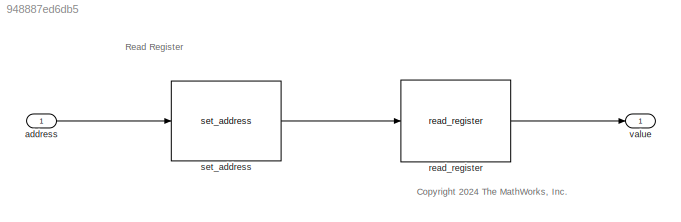
MODEL slx_948887ed6db5
KIND model
CONFIG AbsTol = auto
CONFIG EnableMultiTasking = off
CONFIG FixedStep = SAMPLING_TIME
CONFIG MaxStep = auto
CONFIG MinStep = auto
CONFIG RelTol = 1e-3
CONFIG SampleTimeConstraint = Unconstrained
CONFIG SolverName = FixedStepAuto
CONFIG StartTime = 0.0
CONFIG StopTime = Inf
BLOCK [Inport] address
  PortDimensions = [1 6]
BLOCK [Reference] read_register  REF=Interface/read_register
  SourceBlock = Interface/read_register
  SourceType = SubSystem
BLOCK [Reference] set_address  REF=Interface/set_address
  SourceBlock = Interface/set_address
  SourceType = SubSystem
BLOCK [Outport] value
  VectorParamsAs1DForOutWhenUnconnected = off
ANNOTATION (root): <copyright redacted>
ANNOTATION (root): Read Register
LINE address:1 -> set_address:1
LINE read_register:1 -> value:1
LINE set_address:1 -> read_register:1
